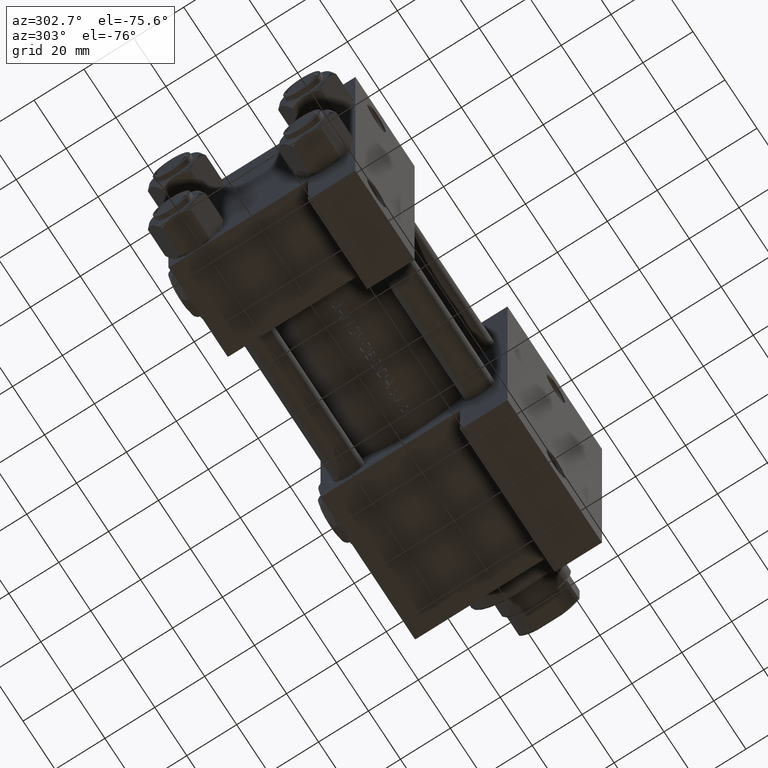
[diagram: clean part render]
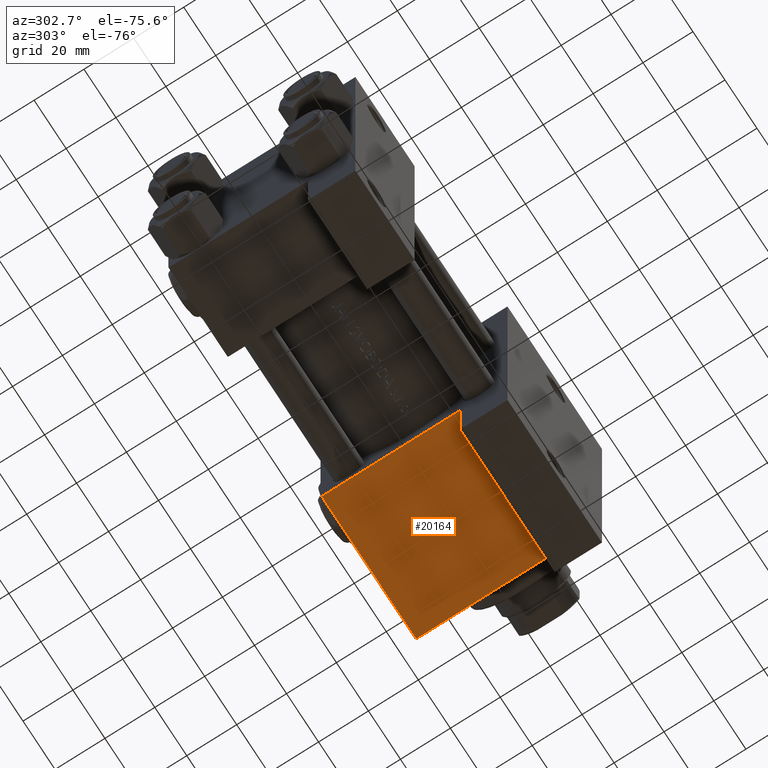
[diagram: same view with one face highlighted and labeled with its STEP entity id]
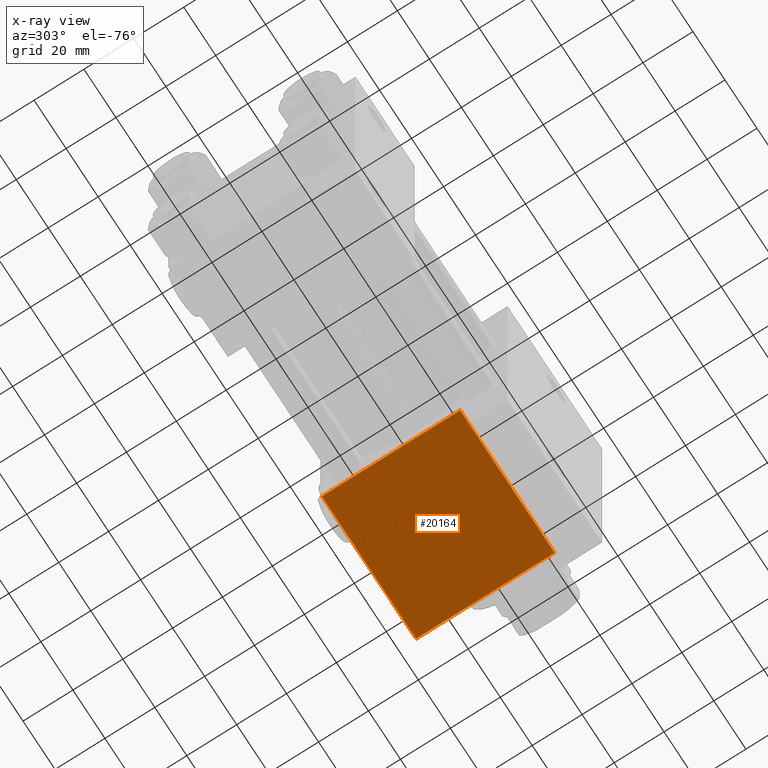
[diagram: x-ray of the same camera — body ghosted, the highlighted face saturated]
A machine part, auxiliary view. The second image highlights one B-rep face of the part: STEP entity #20164.
The next image is the same camera in x-ray: the body ghosted, the highlighted face saturated — about 0% of this face is hidden behind the body in this view.
In plain terms, the highlighted planar face has unit normal (0, 0, -1).
Its self-contained STEP definition (entity closure, byte-faithful):
#466 = CARTESIAN_POINT ( 'NONE',  ( 95.00000000000000000, 37.50000000000000000, 37.49999999999999289 ) ) ;
#2948 = CARTESIAN_POINT ( 'NONE',  ( 153.9999999999999716, 37.50000000000000711, -18.50000000000000000 ) ) ;
#6919 = CARTESIAN_POINT ( 'NONE',  ( 154.0000000000000000, 37.50000000000000000, 37.49999999999999289 ) ) ;
#11414 = VECTOR ( 'NONE', #39636, 1000.000000000000000 ) ;
#12279 = EDGE_CURVE ( 'NONE', #33574, #12611, #44025, .T. ) ;
#12611 = VERTEX_POINT ( 'NONE', #44691 ) ;
#13687 = LINE ( 'NONE', #43178, #26980 ) ;
#16322 = ORIENTED_EDGE ( 'NONE', *, *, #26473, .F. ) ;
#16331 = LINE ( 'NONE', #466, #47617 ) ;
#18070 = FACE_OUTER_BOUND ( 'NONE', #27551, .T. ) ;
#20023 = ORIENTED_EDGE ( 'NONE', *, *, #35186, .T. ) ;
#20164 = ADVANCED_FACE ( 'NONE', ( #18070 ), #21544, .T. ) ;
#21544 = PLANE ( 'NONE',  #28416 ) ;
#22745 = VECTOR ( 'NONE', #40304, 1000.000000000000000 ) ;
#23274 = DIRECTION ( 'NONE',  ( 0.000000000000000000, 0.000000000000000000, -1.000000000000000000 ) ) ;
#24516 = EDGE_CURVE ( 'NONE', #38101, #39662, #13687, .T. ) ;
#26067 = CARTESIAN_POINT ( 'NONE',  ( 95.00000000000000000, 37.50000000000000000, -18.50000000000000355 ) ) ;
#26473 = EDGE_CURVE ( 'NONE', #33574, #39662, #16331, .T. ) ;
#26980 = VECTOR ( 'NONE', #39452, 1000.000000000000000 ) ;
#27428 = ORIENTED_EDGE ( 'NONE', *, *, #12279, .T. ) ;
#27551 = EDGE_LOOP ( 'NONE', ( #16322, #27428, #20023, #35641 ) ) ;
#28416 = AXIS2_PLACEMENT_3D ( 'NONE', #6919, #29714, #33438 ) ;
#29714 = DIRECTION ( 'NONE',  ( -0.000000000000000000, 1.000000000000000000, 0.000000000000000000 ) ) ;
#29882 = CARTESIAN_POINT ( 'NONE',  ( 154.0000000000000000, 37.50000000000000000, 36.99999999999999289 ) ) ;
#33438 = DIRECTION ( 'NONE',  ( 0.000000000000000000, -0.000000000000000000, 1.000000000000000000 ) ) ;
#33574 = VERTEX_POINT ( 'NONE', #47633 ) ;
#35186 = EDGE_CURVE ( 'NONE', #12611, #38101, #46584, .T. ) ;
#35641 = ORIENTED_EDGE ( 'NONE', *, *, #24516, .T. ) ;
#35674 = CARTESIAN_POINT ( 'NONE',  ( 154.0000000000000000, 37.50000000000000000, 37.49999999999999289 ) ) ;
#38101 = VERTEX_POINT ( 'NONE', #2948 ) ;
#39452 = DIRECTION ( 'NONE',  ( -1.000000000000000000, -1.176083712526649442E-16, -0.000000000000000000 ) ) ;
#39636 = DIRECTION ( 'NONE',  ( 0.000000000000000000, 0.000000000000000000, -1.000000000000000000 ) ) ;
#39662 = VERTEX_POINT ( 'NONE', #26067 ) ;
#40304 = DIRECTION ( 'NONE',  ( 1.000000000000000000, 0.000000000000000000, 0.000000000000000000 ) ) ;
#43178 = CARTESIAN_POINT ( 'NONE',  ( 95.00000000000000000, 37.50000000000000000, -18.50000000000000000 ) ) ;
#44025 = LINE ( 'NONE', #29882, #22745 ) ;
#44691 = CARTESIAN_POINT ( 'NONE',  ( 154.0000000000000000, 37.50000000000000000, 36.99999999999999289 ) ) ;
#46584 = LINE ( 'NONE', #35674, #11414 ) ;
#47617 = VECTOR ( 'NONE', #23274, 1000.000000000000000 ) ;
#47633 = CARTESIAN_POINT ( 'NONE',  ( 95.00000000000000000, 37.50000000000000000, 36.99999999999999289 ) ) ;